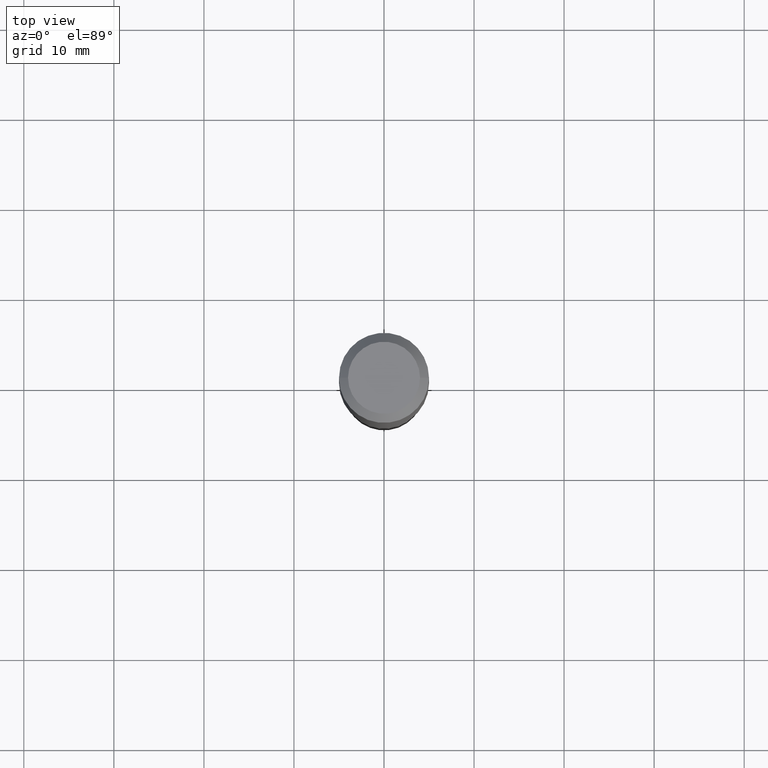
[diagram: clean part render]
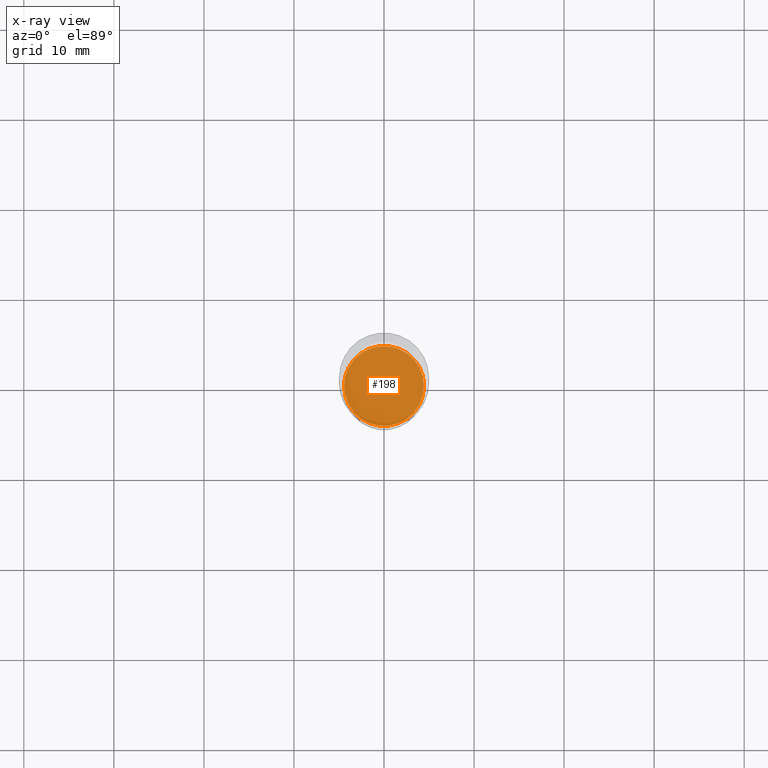
[diagram: x-ray — body ghosted, one internal face saturated and labeled with its STEP entity id]
A machine part, top view, then the same camera in x-ray: the body is ghosted and one INTERNAL B-rep face — a face not visible from any outside direction — is saturated and labeled: STEP entity #198.
In plain terms, the highlighted planar face has unit normal (-0, 0, 1).
Its self-contained STEP definition (entity closure, byte-faithful):
#14 = DIRECTION ( 'NONE',  ( -2.445468806185136597E-29, 3.491481338843145583E-15, 1.000000000000000000 ) ) ;
#70 = CARTESIAN_POINT ( 'NONE',  ( -0.1746999999999999942, -6.069289425793847064E-15, -2.094600000000000239 ) ) ;
#86 = VERTEX_POINT ( 'NONE', #265 ) ;
#92 = CIRCLE ( 'NONE', #461, 0.1746999999999999942 ) ;
#120 = VERTEX_POINT ( 'NONE', #70 ) ;
#125 = EDGE_CURVE ( 'NONE', #86, #120, #92, .T. ) ;
#137 = DIRECTION ( 'NONE',  ( -2.438088387897960049E-29, 3.491481338843145188E-15, 1.000000000000000000 ) ) ;
#150 = AXIS2_PLACEMENT_3D ( 'NONE', #218, #14, #178 ) ;
#160 = FACE_OUTER_BOUND ( 'NONE', #287, .T. ) ;
#166 = EDGE_CURVE ( 'NONE', #120, #86, #451, .T. ) ;
#178 = DIRECTION ( 'NONE',  ( 1.000000000000000000, -6.982962677686265922E-15, 0.000000000000000000 ) ) ;
#191 = DIRECTION ( 'NONE',  ( 1.000000000000000000, -6.982962677686265922E-15, 4.876176775795935793E-29 ) ) ;
#198 = ADVANCED_FACE ( 'NONE', ( #160 ), #215, .F. ) ;
#208 = CARTESIAN_POINT ( 'NONE',  ( 5.122278961435387736E-29, -7.313256812340853051E-15, -2.094600000000000239 ) ) ;
#215 = PLANE ( 'NONE',  #345 ) ;
#218 = CARTESIAN_POINT ( 'NONE',  ( 5.122278961435387736E-29, -7.313256812340853051E-15, -2.094600000000000239 ) ) ;
#238 = CARTESIAN_POINT ( 'NONE',  ( 5.122278961435387736E-29, -7.313256812340853051E-15, -2.094600000000000239 ) ) ;
#244 = ORIENTED_EDGE ( 'NONE', *, *, #166, .F. ) ;
#265 = CARTESIAN_POINT ( 'NONE',  ( 0.1746999999999999942, -8.533180392132643921E-15, -2.094600000000000239 ) ) ;
#287 = EDGE_LOOP ( 'NONE', ( #508, #244 ) ) ;
#308 = DIRECTION ( 'NONE',  ( -2.445468806185136597E-29, 3.491481338843145583E-15, 1.000000000000000000 ) ) ;
#343 = DIRECTION ( 'NONE',  ( 1.000000000000000000, -6.982962677686265922E-15, 0.000000000000000000 ) ) ;
#345 = AXIS2_PLACEMENT_3D ( 'NONE', #208, #137, #191 ) ;
#451 = CIRCLE ( 'NONE', #150, 0.1746999999999999942 ) ;
#461 = AXIS2_PLACEMENT_3D ( 'NONE', #238, #308, #343 ) ;
#508 = ORIENTED_EDGE ( 'NONE', *, *, #125, .F. ) ;